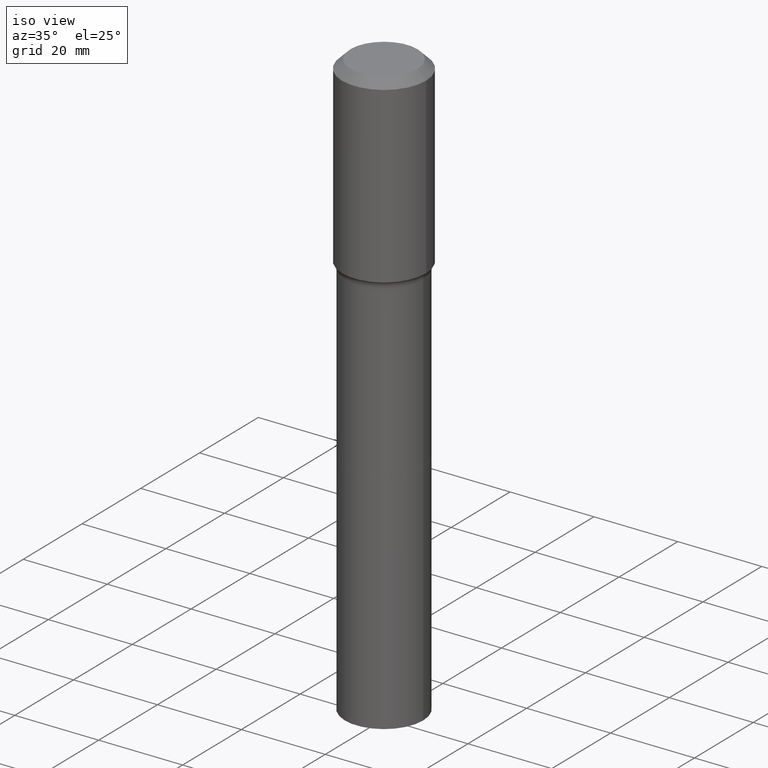
[diagram: clean part render]
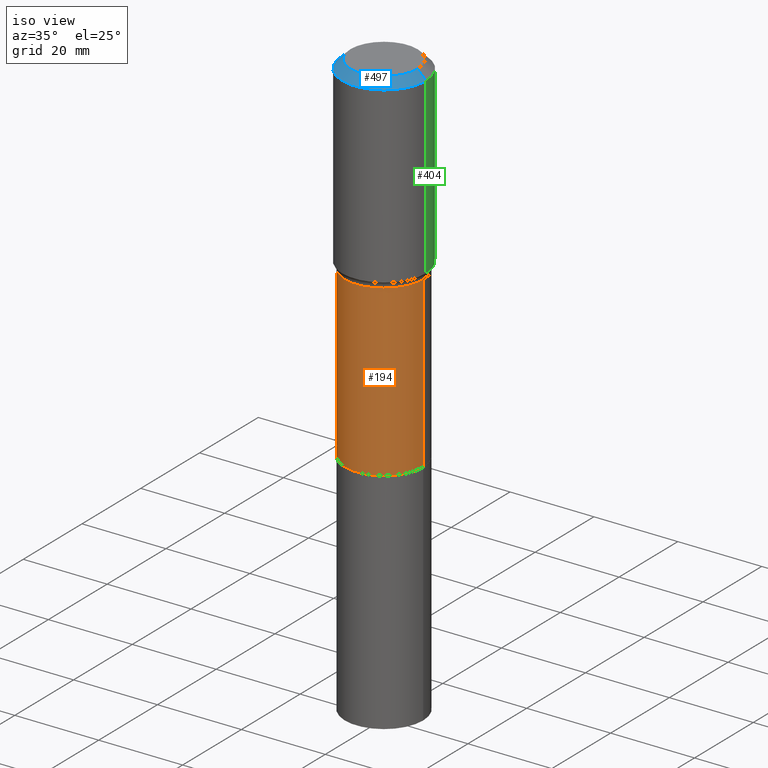
[diagram: same view with three faces highlighted in distinct colors, each labeled with its STEP entity id]
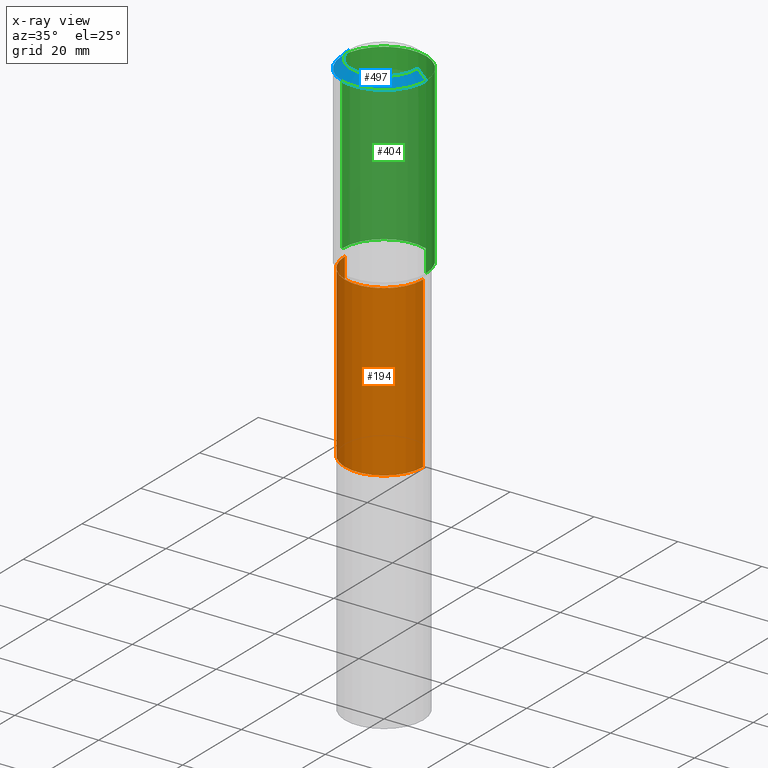
[diagram: x-ray of the same camera — body ghosted, the three highlighted faces saturated]
A machine part, iso view with three faces highlighted in distinct colors.
The next image is the same camera in x-ray (body ghosted, the three faces saturated) — at least one of them is partly hidden behind the body in this view.
Their STEP definitions:

[orange] entity #194 — the highlighted cylindrical surface (partial cylindrical patch) has radius 9.3269 mm, axis along (-0, 0, 1).
#1 = AXIS2_PLACEMENT_3D ( 'NONE', #187, #472, #316 ) ;
#19 = CARTESIAN_POINT ( 'NONE',  ( 4.332881630798825211E-29, -6.186206636162284593E-15, -1.771800000000000042 ) ) ;
#20 = LINE ( 'NONE', #178, #510 ) ;
#26 = EDGE_CURVE ( 'NONE', #286, #44, #20, .T. ) ;
#30 = CARTESIAN_POINT ( 'NONE',  ( 0.3671999999999998598, -8.750350531408680543E-15, -1.771800000000000042 ) ) ;
#34 = CIRCLE ( 'NONE', #71, 0.3672000000000000264 ) ;
#44 = VERTEX_POINT ( 'NONE', #332 ) ;
#58 = DIRECTION ( 'NONE',  ( -2.445468806185136597E-29, 3.491481338843145583E-15, 1.000000000000000000 ) ) ;
#59 = CARTESIAN_POINT ( 'NONE',  ( 0.3672000000000000264, -1.430355160083870506E-14, -3.362299999999999844 ) ) ;
#71 = AXIS2_PLACEMENT_3D ( 'NONE', #142, #179, #181 ) ;
#76 = AXIS2_PLACEMENT_3D ( 'NONE', #19, #58, #301 ) ;
#110 = CARTESIAN_POINT ( 'NONE',  ( 0.3671999999999999709, -2.564143895246397133E-15, 1.790532112072267385E-29 ) ) ;
#142 = CARTESIAN_POINT ( 'NONE',  ( 8.222399767036285134E-29, -1.173940770559230754E-14, -3.362299999999999844 ) ) ;
#153 = ORIENTED_EDGE ( 'NONE', *, *, #373, .T. ) ;
#178 = CARTESIAN_POINT ( 'NONE',  ( -0.3671999999999999709, 2.609112925711087676E-15, -1.806232965141601217E-29 ) ) ;
#179 = DIRECTION ( 'NONE',  ( -2.445468806185136597E-29, 3.491481338843145583E-15, 1.000000000000000000 ) ) ;
#181 = DIRECTION ( 'NONE',  ( 1.000000000000000000, -6.982962677686269077E-15, 0.000000000000000000 ) ) ;
#187 = CARTESIAN_POINT ( 'NONE',  ( 0.000000000000000000, 0.000000000000000000, 0.000000000000000000 ) ) ;
#194 = ADVANCED_FACE ( 'NONE', ( #475 ), #343, .T. ) ;
#198 = VERTEX_POINT ( 'NONE', #59 ) ;
#201 = EDGE_CURVE ( 'NONE', #198, #449, #433, .T. ) ;
#274 = DIRECTION ( 'NONE',  ( -2.445468806185136877E-29, 3.491481338843145188E-15, 1.000000000000000000 ) ) ;
#276 = EDGE_LOOP ( 'NONE', ( #443, #153, #362, #513 ) ) ;
#286 = VERTEX_POINT ( 'NONE', #310 ) ;
#297 = CIRCLE ( 'NONE', #76, 0.3671999999999998598 ) ;
#301 = DIRECTION ( 'NONE',  ( 1.000000000000000000, -6.982962677686268288E-15, 0.000000000000000000 ) ) ;
#310 = CARTESIAN_POINT ( 'NONE',  ( -0.3672000000000000264, -6.353694245166206812E-15, -3.362299999999999844 ) ) ;
#316 = DIRECTION ( 'NONE',  ( 1.000000000000000000, -6.982962677686267499E-15, 4.876176775795935793E-29 ) ) ;
#332 = CARTESIAN_POINT ( 'NONE',  ( -0.3671999999999998598, -6.353694245166207601E-15, -1.771800000000000042 ) ) ;
#343 = CYLINDRICAL_SURFACE ( 'NONE', #1, 0.3671999999999999709 ) ;
#362 = ORIENTED_EDGE ( 'NONE', *, *, #201, .T. ) ;
#373 = EDGE_CURVE ( 'NONE', #286, #198, #34, .T. ) ;
#433 = LINE ( 'NONE', #110, #474 ) ;
#443 = ORIENTED_EDGE ( 'NONE', *, *, #26, .F. ) ;
#449 = VERTEX_POINT ( 'NONE', #30 ) ;
#472 = DIRECTION ( 'NONE',  ( -2.445468806185136597E-29, 3.491481338843145583E-15, 1.000000000000000000 ) ) ;
#474 = VECTOR ( 'NONE', #274, 39.37007874015748143 ) ;
#475 = FACE_OUTER_BOUND ( 'NONE', #276, .T. ) ;
#496 = DIRECTION ( 'NONE',  ( -2.445468806185136877E-29, 3.491481338843145188E-15, 1.000000000000000000 ) ) ;
#510 = VECTOR ( 'NONE', #496, 39.37007874015748143 ) ;
#512 = EDGE_CURVE ( 'NONE', #44, #449, #297, .T. ) ;
#513 = ORIENTED_EDGE ( 'NONE', *, *, #512, .F. ) ;

[blue] entity #497 — the highlighted conical surface has half-angle 45 deg.
#6 = ORIENTED_EDGE ( 'NONE', *, *, #118, .T. ) ;
#15 = CARTESIAN_POINT ( 'NONE',  ( 1.925562137990189780E-30, -2.749192406205111123E-16, -0.07874000000000053179 ) ) ;
#24 = CARTESIAN_POINT ( 'NONE',  ( 0.3937000000000000499, -2.975897302343163203E-15, -0.07874000000000053179 ) ) ;
#25 = EDGE_CURVE ( 'NONE', #167, #319, #102, .T. ) ;
#27 = CARTESIAN_POINT ( 'NONE',  ( 1.925562137990189780E-30, -2.749192406205111123E-16, -0.07874000000000053179 ) ) ;
#37 = DIRECTION ( 'NONE',  ( 0.7071067811865452413, -7.319954787623248157E-15, -0.7071067811865497932 ) ) ;
#62 = CARTESIAN_POINT ( 'NONE',  ( -0.3937000000000000499, -3.285328864653178671E-16, -0.07874000000000053179 ) ) ;
#102 = CIRCLE ( 'NONE', #402, 0.3937000000000000499 ) ;
#118 = EDGE_CURVE ( 'NONE', #312, #167, #377, .T. ) ;
#129 = DIRECTION ( 'NONE',  ( 1.000000000000000000, -6.982962677686265922E-15, 0.000000000000000000 ) ) ;
#164 = ORIENTED_EDGE ( 'NONE', *, *, #323, .F. ) ;
#167 = VERTEX_POINT ( 'NONE', #62 ) ;
#184 = DIRECTION ( 'NONE',  ( 2.445468806185136597E-29, -3.491481338843145583E-15, -1.000000000000000000 ) ) ;
#200 = VECTOR ( 'NONE', #250, 39.37007874015748143 ) ;
#203 = ORIENTED_EDGE ( 'NONE', *, *, #25, .T. ) ;
#205 = ORIENTED_EDGE ( 'NONE', *, *, #225, .F. ) ;
#221 = AXIS2_PLACEMENT_3D ( 'NONE', #27, #184, #463 ) ;
#222 = FACE_OUTER_BOUND ( 'NONE', #351, .T. ) ;
#225 = EDGE_CURVE ( 'NONE', #243, #319, #478, .T. ) ;
#243 = VERTEX_POINT ( 'NONE', #306 ) ;
#244 = VECTOR ( 'NONE', #37, 39.37007874015748143 ) ;
#250 = DIRECTION ( 'NONE',  ( -0.7071067811865452413, 2.468850131082233000E-15, -0.7071067811865497932 ) ) ;
#253 = DIRECTION ( 'NONE',  ( -2.445468806185136597E-29, 3.491481338843145583E-15, 1.000000000000000000 ) ) ;
#258 = DIRECTION ( 'NONE',  ( 1.000000000000000000, -6.982962677686265922E-15, 4.876223630392693006E-29 ) ) ;
#280 = AXIS2_PLACEMENT_3D ( 'NONE', #288, #506, #258 ) ;
#288 = CARTESIAN_POINT ( 'NONE',  ( -9.427742298522567634E-47, 1.346031739168368355E-32, 3.855188123715870730E-18 ) ) ;
#306 = CARTESIAN_POINT ( 'NONE',  ( 0.3149600000000000177, -2.568339875860642378E-15, 3.855188123732540039E-18 ) ) ;
#312 = VERTEX_POINT ( 'NONE', #515 ) ;
#317 = CONICAL_SURFACE ( 'NONE', #221, 0.3937000000000000499, 0.7853981633974450594 ) ;
#319 = VERTEX_POINT ( 'NONE', #372 ) ;
#323 = EDGE_CURVE ( 'NONE', #312, #243, #330, .T. ) ;
#330 = CIRCLE ( 'NONE', #280, 0.3149600000000000177 ) ;
#351 = EDGE_LOOP ( 'NONE', ( #205, #164, #6, #203 ) ) ;
#372 = CARTESIAN_POINT ( 'NONE',  ( 0.3937000000000000499, -3.024111646825594378E-15, -0.07874000000000053179 ) ) ;
#377 = LINE ( 'NONE', #454, #200 ) ;
#402 = AXIS2_PLACEMENT_3D ( 'NONE', #15, #253, #129 ) ;
#454 = CARTESIAN_POINT ( 'NONE',  ( -0.3937000000000000499, 2.474273165584572449E-15, -0.07874000000000053179 ) ) ;
#463 = DIRECTION ( 'NONE',  ( -1.000000000000000000, 6.982962677686265922E-15, 0.000000000000000000 ) ) ;
#478 = LINE ( 'NONE', #24, #244 ) ;
#497 = ADVANCED_FACE ( 'NONE', ( #222 ), #317, .T. ) ;
#506 = DIRECTION ( 'NONE',  ( -2.445468806185136597E-29, 3.491481338843145583E-15, 1.000000000000000000 ) ) ;
#515 = CARTESIAN_POINT ( 'NONE',  ( -0.3149600000000000177, 2.336813545274319235E-15, 3.855188123700009542E-18 ) ) ;

[green] entity #404 — the highlighted cylindrical surface (partial cylindrical patch) has radius 10 mm, axis along (-0, 0, 1).
#4 = ORIENTED_EDGE ( 'NONE', *, *, #248, .T. ) ;
#10 = AXIS2_PLACEMENT_3D ( 'NONE', #36, #192, #350 ) ;
#16 = CIRCLE ( 'NONE', #80, 0.3937000000000000499 ) ;
#17 = DIRECTION ( 'NONE',  ( -2.445468806185136597E-29, 3.491481338843145583E-15, 1.000000000000000000 ) ) ;
#36 = CARTESIAN_POINT ( 'NONE',  ( 4.186323196284152039E-29, -5.976960033685155033E-15, -1.711869391135150131 ) ) ;
#61 = AXIS2_PLACEMENT_3D ( 'NONE', #503, #17, #501 ) ;
#62 = CARTESIAN_POINT ( 'NONE',  ( -0.3937000000000000499, -3.285328864653178671E-16, -0.07874000000000053179 ) ) ;
#80 = AXIS2_PLACEMENT_3D ( 'NONE', #267, #508, #346 ) ;
#100 = DIRECTION ( 'NONE',  ( -2.445468806185136877E-29, 3.491481338843145188E-15, 1.000000000000000000 ) ) ;
#140 = CARTESIAN_POINT ( 'NONE',  ( 0.3937000000000001054, -2.749192406205084005E-15, 1.919750796630860452E-29 ) ) ;
#154 = CARTESIAN_POINT ( 'NONE',  ( 0.3937000000000002164, -8.726152439890239038E-15, -1.711869391135150131 ) ) ;
#167 = VERTEX_POINT ( 'NONE', #62 ) ;
#192 = DIRECTION ( 'NONE',  ( -2.445468806185136597E-29, 3.491481338843145583E-15, 1.000000000000000000 ) ) ;
#196 = VERTEX_POINT ( 'NONE', #154 ) ;
#220 = CARTESIAN_POINT ( 'NONE',  ( -0.3937000000000001054, 2.797406750687515181E-15, -1.936584745033357016E-29 ) ) ;
#224 = CIRCLE ( 'NONE', #10, 0.3937000000000002164 ) ;
#245 = ORIENTED_EDGE ( 'NONE', *, *, #311, .T. ) ;
#248 = EDGE_CURVE ( 'NONE', #361, #167, #470, .T. ) ;
#262 = EDGE_CURVE ( 'NONE', #319, #167, #16, .T. ) ;
#267 = CARTESIAN_POINT ( 'NONE',  ( 1.925562137990189780E-30, -2.749192406205111123E-16, -0.07874000000000053179 ) ) ;
#268 = CYLINDRICAL_SURFACE ( 'NONE', #61, 0.3937000000000001054 ) ;
#269 = VECTOR ( 'NONE', #100, 39.37007874015748143 ) ;
#303 = DIRECTION ( 'NONE',  ( -2.445468806185136877E-29, 3.491481338843145188E-15, 1.000000000000000000 ) ) ;
#311 = EDGE_CURVE ( 'NONE', #196, #361, #224, .T. ) ;
#319 = VERTEX_POINT ( 'NONE', #372 ) ;
#338 = LINE ( 'NONE', #140, #438 ) ;
#346 = DIRECTION ( 'NONE',  ( 1.000000000000000000, -6.982962677686265922E-15, 0.000000000000000000 ) ) ;
#349 = ORIENTED_EDGE ( 'NONE', *, *, #488, .F. ) ;
#350 = DIRECTION ( 'NONE',  ( 1.000000000000000000, -6.982962677686266711E-15, 0.000000000000000000 ) ) ;
#360 = EDGE_LOOP ( 'NONE', ( #245, #4, #485, #349 ) ) ;
#361 = VERTEX_POINT ( 'NONE', #466 ) ;
#372 = CARTESIAN_POINT ( 'NONE',  ( 0.3937000000000000499, -3.024111646825594378E-15, -0.07874000000000053179 ) ) ;
#404 = ADVANCED_FACE ( 'NONE', ( #428 ), #268, .T. ) ;
#428 = FACE_OUTER_BOUND ( 'NONE', #360, .T. ) ;
#438 = VECTOR ( 'NONE', #303, 39.37007874015748143 ) ;
#466 = CARTESIAN_POINT ( 'NONE',  ( -0.3937000000000002164, -3.179553282997638274E-15, -1.711869391135150131 ) ) ;
#470 = LINE ( 'NONE', #220, #269 ) ;
#485 = ORIENTED_EDGE ( 'NONE', *, *, #262, .F. ) ;
#488 = EDGE_CURVE ( 'NONE', #196, #319, #338, .T. ) ;
#501 = DIRECTION ( 'NONE',  ( 1.000000000000000000, -6.982962677686266711E-15, 4.876176775795935793E-29 ) ) ;
#503 = CARTESIAN_POINT ( 'NONE',  ( 0.000000000000000000, 0.000000000000000000, 0.000000000000000000 ) ) ;
#508 = DIRECTION ( 'NONE',  ( -2.445468806185136597E-29, 3.491481338843145583E-15, 1.000000000000000000 ) ) ;